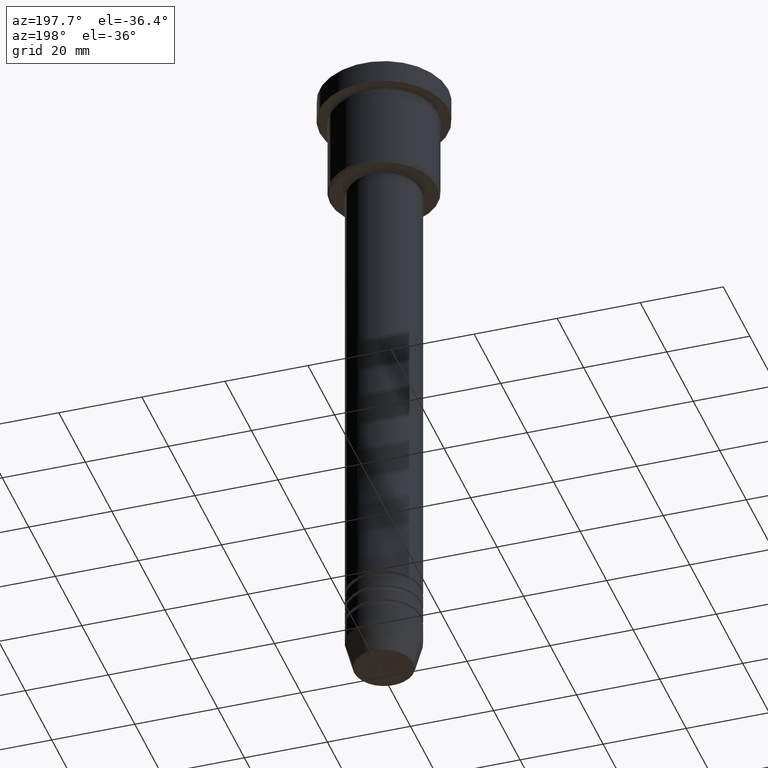
[diagram: clean part render]
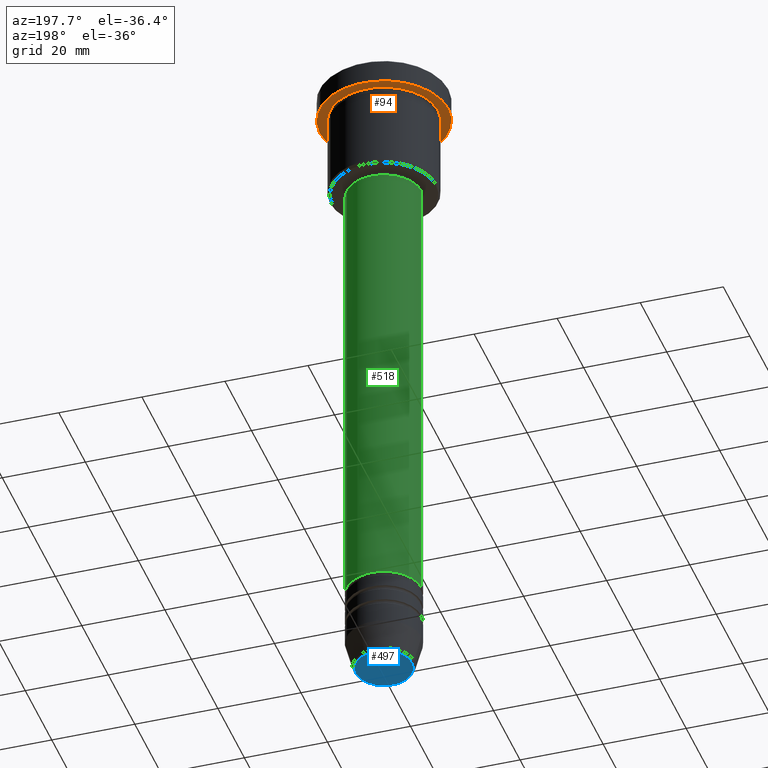
[diagram: same view with three faces highlighted in distinct colors, each labeled with its STEP entity id]
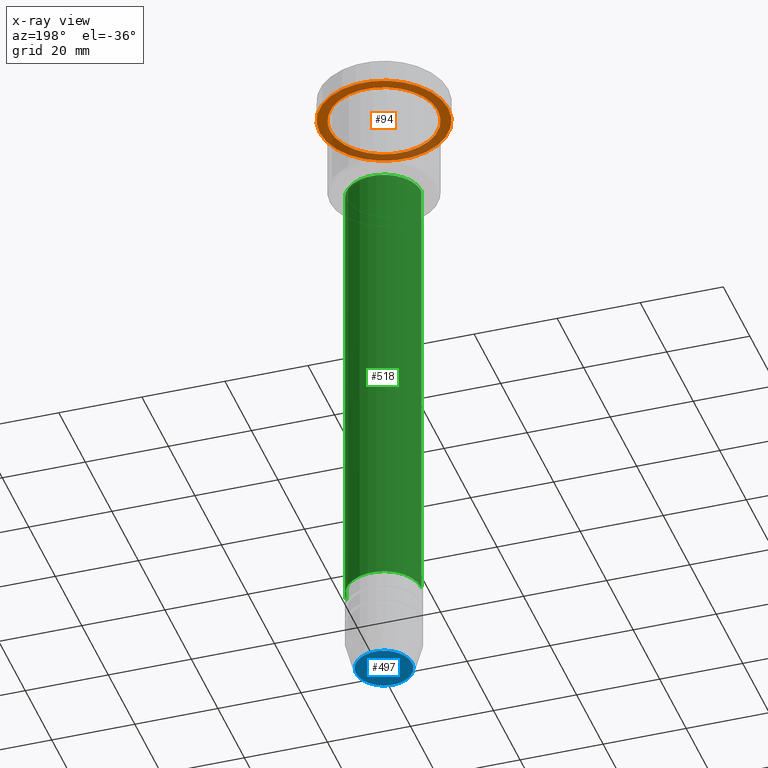
[diagram: x-ray of the same camera — body ghosted, the three highlighted faces saturated]
A machine part, auxiliary view with three faces highlighted in distinct colors.
The next image is the same camera in x-ray (body ghosted, the three faces saturated) — at least one of them is partly hidden behind the body in this view.
Their STEP definitions:

[orange] entity #94 — the highlighted planar face has unit normal (0, 0, -1).
#4 = DIRECTION ( 'NONE',  ( -1.000000000000000000, 0.000000000000000000, 0.000000000000000000 ) ) ;
#40 = VERTEX_POINT ( 'NONE', #455 ) ;
#47 = EDGE_LOOP ( 'NONE', ( #195, #1017 ) ) ;
#53 = DIRECTION ( 'NONE',  ( -1.000000000000000000, 0.000000000000000000, 0.000000000000000000 ) ) ;
#83 = AXIS2_PLACEMENT_3D ( 'NONE', #1007, #1095, #451 ) ;
#84 = CIRCLE ( 'NONE', #83, 15.50000000000000000 ) ;
#94 = ADVANCED_FACE ( 'NONE', ( #625, #975 ), #1150, .T. ) ;
#128 = EDGE_CURVE ( 'NONE', #40, #711, #571, .T. ) ;
#169 = VERTEX_POINT ( 'NONE', #1067 ) ;
#195 = ORIENTED_EDGE ( 'NONE', *, *, #532, .F. ) ;
#240 = EDGE_CURVE ( 'NONE', #711, #40, #837, .T. ) ;
#367 = CARTESIAN_POINT ( 'NONE',  ( 0.000000000000000000, 15.50000000000000000, -5.999999999999995559 ) ) ;
#368 = CARTESIAN_POINT ( 'NONE',  ( 0.000000000000000000, 0.000000000000000000, -5.999999999999995559 ) ) ;
#373 = DIRECTION ( 'NONE',  ( -0.000000000000000000, -0.000000000000000000, 1.000000000000000000 ) ) ;
#445 = DIRECTION ( 'NONE',  ( 0.000000000000000000, 0.000000000000000000, -1.000000000000000000 ) ) ;
#449 = ORIENTED_EDGE ( 'NONE', *, *, #128, .T. ) ;
#451 = DIRECTION ( 'NONE',  ( 1.000000000000000000, 0.000000000000000000, 0.000000000000000000 ) ) ;
#455 = CARTESIAN_POINT ( 'NONE',  ( -13.00000000000000000, 0.000000000000000000, -5.999999999999994671 ) ) ;
#484 = AXIS2_PLACEMENT_3D ( 'NONE', #1079, #891, #53 ) ;
#532 = EDGE_CURVE ( 'NONE', #169, #589, #786, .T. ) ;
#571 = CIRCLE ( 'NONE', #484, 13.00000000000000000 ) ;
#585 = AXIS2_PLACEMENT_3D ( 'NONE', #368, #1009, #1183 ) ;
#589 = VERTEX_POINT ( 'NONE', #1104 ) ;
#625 = FACE_BOUND ( 'NONE', #1129, .T. ) ;
#711 = VERTEX_POINT ( 'NONE', #763 ) ;
#714 = AXIS2_PLACEMENT_3D ( 'NONE', #367, #445, #1000 ) ;
#763 = CARTESIAN_POINT ( 'NONE',  ( 13.00000000000000000, 1.592040838891559095E-15, -5.999999999999994671 ) ) ;
#786 = CIRCLE ( 'NONE', #585, 15.50000000000000000 ) ;
#837 = CIRCLE ( 'NONE', #875, 13.00000000000000000 ) ;
#875 = AXIS2_PLACEMENT_3D ( 'NONE', #1027, #373, #4 ) ;
#891 = DIRECTION ( 'NONE',  ( -0.000000000000000000, -0.000000000000000000, 1.000000000000000000 ) ) ;
#912 = ORIENTED_EDGE ( 'NONE', *, *, #240, .T. ) ;
#975 = FACE_OUTER_BOUND ( 'NONE', #47, .T. ) ;
#1000 = DIRECTION ( 'NONE',  ( -1.000000000000000000, 0.000000000000000000, -0.000000000000000000 ) ) ;
#1007 = CARTESIAN_POINT ( 'NONE',  ( 0.000000000000000000, 0.000000000000000000, -5.999999999999995559 ) ) ;
#1009 = DIRECTION ( 'NONE',  ( -0.000000000000000000, -0.000000000000000000, 1.000000000000000000 ) ) ;
#1017 = ORIENTED_EDGE ( 'NONE', *, *, #1122, .F. ) ;
#1027 = CARTESIAN_POINT ( 'NONE',  ( 0.000000000000000000, 0.000000000000000000, -5.999999999999995559 ) ) ;
#1067 = CARTESIAN_POINT ( 'NONE',  ( 15.50000000000000000, 0.000000000000000000, -5.999999999999995559 ) ) ;
#1079 = CARTESIAN_POINT ( 'NONE',  ( 0.000000000000000000, 0.000000000000000000, -5.999999999999995559 ) ) ;
#1095 = DIRECTION ( 'NONE',  ( -0.000000000000000000, -0.000000000000000000, 1.000000000000000000 ) ) ;
#1104 = CARTESIAN_POINT ( 'NONE',  ( -15.50000000000000000, 1.898202538678397557E-15, -5.999999999999995559 ) ) ;
#1122 = EDGE_CURVE ( 'NONE', #589, #169, #84, .T. ) ;
#1129 = EDGE_LOOP ( 'NONE', ( #449, #912 ) ) ;
#1150 = PLANE ( 'NONE',  #714 ) ;
#1183 = DIRECTION ( 'NONE',  ( 1.000000000000000000, 0.000000000000000000, 0.000000000000000000 ) ) ;

[blue] entity #497 — the highlighted planar face has unit normal (0, -0, 1).
#38 = CIRCLE ( 'NONE', #873, 6.740692158992658278 ) ;
#58 = EDGE_LOOP ( 'NONE', ( #901, #705 ) ) ;
#223 = DIRECTION ( 'NONE',  ( 1.000000000000000000, 0.000000000000000000, 0.000000000000000000 ) ) ;
#225 = CARTESIAN_POINT ( 'NONE',  ( -6.740692158992658278, 8.550696569392685681E-16, -162.0000000000000284 ) ) ;
#237 = CARTESIAN_POINT ( 'NONE',  ( 0.000000000000000000, 0.000000000000000000, -162.0000000000000284 ) ) ;
#421 = PLANE ( 'NONE',  #708 ) ;
#497 = ADVANCED_FACE ( 'NONE', ( #688 ), #421, .F. ) ;
#543 = AXIS2_PLACEMENT_3D ( 'NONE', #556, #870, #1051 ) ;
#556 = CARTESIAN_POINT ( 'NONE',  ( 0.000000000000000000, 0.000000000000000000, -162.0000000000000284 ) ) ;
#673 = DIRECTION ( 'NONE',  ( 0.000000000000000000, 0.000000000000000000, -1.000000000000000000 ) ) ;
#684 = EDGE_CURVE ( 'NONE', #997, #831, #38, .T. ) ;
#688 = FACE_OUTER_BOUND ( 'NONE', #58, .T. ) ;
#705 = ORIENTED_EDGE ( 'NONE', *, *, #684, .T. ) ;
#708 = AXIS2_PLACEMENT_3D ( 'NONE', #237, #1068, #791 ) ;
#791 = DIRECTION ( 'NONE',  ( 1.000000000000000000, 0.000000000000000000, 0.000000000000000000 ) ) ;
#831 = VERTEX_POINT ( 'NONE', #1062 ) ;
#870 = DIRECTION ( 'NONE',  ( 0.000000000000000000, 0.000000000000000000, -1.000000000000000000 ) ) ;
#873 = AXIS2_PLACEMENT_3D ( 'NONE', #959, #673, #223 ) ;
#901 = ORIENTED_EDGE ( 'NONE', *, *, #1029, .T. ) ;
#959 = CARTESIAN_POINT ( 'NONE',  ( 0.000000000000000000, 0.000000000000000000, -162.0000000000000284 ) ) ;
#997 = VERTEX_POINT ( 'NONE', #225 ) ;
#1029 = EDGE_CURVE ( 'NONE', #831, #997, #1137, .T. ) ;
#1051 = DIRECTION ( 'NONE',  ( 1.000000000000000000, 0.000000000000000000, 0.000000000000000000 ) ) ;
#1062 = CARTESIAN_POINT ( 'NONE',  ( 6.740692158992658278, 0.000000000000000000, -162.0000000000000284 ) ) ;
#1068 = DIRECTION ( 'NONE',  ( 0.000000000000000000, -0.000000000000000000, 1.000000000000000000 ) ) ;
#1137 = CIRCLE ( 'NONE', #543, 6.740692158992658278 ) ;

[green] entity #518 — the highlighted cylindrical surface (partial cylindrical patch) has radius 9 mm, axis along (-0, -0, 1).
#2 = CIRCLE ( 'NONE', #116, 9.000000000000001776 ) ;
#29 = CIRCLE ( 'NONE', #111, 8.999999999999998224 ) ;
#70 = LINE ( 'NONE', #440, #478 ) ;
#81 = VERTEX_POINT ( 'NONE', #355 ) ;
#111 = AXIS2_PLACEMENT_3D ( 'NONE', #1136, #242, #707 ) ;
#116 = AXIS2_PLACEMENT_3D ( 'NONE', #799, #530, #703 ) ;
#167 = EDGE_CURVE ( 'NONE', #961, #681, #2, .T. ) ;
#193 = DIRECTION ( 'NONE',  ( -0.000000000000000000, -0.000000000000000000, 1.000000000000000000 ) ) ;
#242 = DIRECTION ( 'NONE',  ( -0.000000000000000000, -0.000000000000000000, 1.000000000000000000 ) ) ;
#252 = AXIS2_PLACEMENT_3D ( 'NONE', #820, #1177, #286 ) ;
#256 = EDGE_CURVE ( 'NONE', #681, #615, #1019, .T. ) ;
#286 = DIRECTION ( 'NONE',  ( 1.000000000000000000, 0.000000000000000000, 0.000000000000000000 ) ) ;
#297 = CARTESIAN_POINT ( 'NONE',  ( -9.000000000000000000, 1.102182119232617714E-15, 0.000000000000000000 ) ) ;
#324 = VECTOR ( 'NONE', #193, 1000.000000000000000 ) ;
#347 = ORIENTED_EDGE ( 'NONE', *, *, #256, .T. ) ;
#355 = CARTESIAN_POINT ( 'NONE',  ( 8.999999999999998224, 0.000000000000000000, -28.00000000000001776 ) ) ;
#385 = CARTESIAN_POINT ( 'NONE',  ( -8.999999999999998224, 1.102182119232617714E-15, -28.00000000000001776 ) ) ;
#440 = CARTESIAN_POINT ( 'NONE',  ( 9.000000000000000000, 0.000000000000000000, 0.000000000000000000 ) ) ;
#475 = EDGE_CURVE ( 'NONE', #961, #81, #70, .T. ) ;
#478 = VECTOR ( 'NONE', #812, 1000.000000000000000 ) ;
#512 = FACE_OUTER_BOUND ( 'NONE', #785, .T. ) ;
#518 = ADVANCED_FACE ( 'NONE', ( #512 ), #892, .T. ) ;
#530 = DIRECTION ( 'NONE',  ( -0.000000000000000000, -0.000000000000000000, 1.000000000000000000 ) ) ;
#569 = CARTESIAN_POINT ( 'NONE',  ( -9.000000000000001776, 1.102182119232617911E-15, -140.9999999999999147 ) ) ;
#615 = VERTEX_POINT ( 'NONE', #385 ) ;
#676 = ORIENTED_EDGE ( 'NONE', *, *, #475, .F. ) ;
#681 = VERTEX_POINT ( 'NONE', #569 ) ;
#703 = DIRECTION ( 'NONE',  ( 1.000000000000000000, 0.000000000000000000, 0.000000000000000000 ) ) ;
#707 = DIRECTION ( 'NONE',  ( 1.000000000000000000, 0.000000000000000000, 0.000000000000000000 ) ) ;
#772 = CARTESIAN_POINT ( 'NONE',  ( 9.000000000000001776, 0.000000000000000000, -140.9999999999999147 ) ) ;
#785 = EDGE_LOOP ( 'NONE', ( #1036, #347, #1166, #676 ) ) ;
#799 = CARTESIAN_POINT ( 'NONE',  ( 0.000000000000000000, 0.000000000000000000, -140.9999999999999147 ) ) ;
#812 = DIRECTION ( 'NONE',  ( -0.000000000000000000, -0.000000000000000000, 1.000000000000000000 ) ) ;
#813 = EDGE_CURVE ( 'NONE', #81, #615, #29, .T. ) ;
#820 = CARTESIAN_POINT ( 'NONE',  ( 0.000000000000000000, 0.000000000000000000, 0.000000000000000000 ) ) ;
#892 = CYLINDRICAL_SURFACE ( 'NONE', #252, 9.000000000000000000 ) ;
#961 = VERTEX_POINT ( 'NONE', #772 ) ;
#1019 = LINE ( 'NONE', #297, #324 ) ;
#1036 = ORIENTED_EDGE ( 'NONE', *, *, #167, .T. ) ;
#1136 = CARTESIAN_POINT ( 'NONE',  ( 0.000000000000000000, 0.000000000000000000, -28.00000000000001776 ) ) ;
#1166 = ORIENTED_EDGE ( 'NONE', *, *, #813, .F. ) ;
#1177 = DIRECTION ( 'NONE',  ( -0.000000000000000000, -0.000000000000000000, 1.000000000000000000 ) ) ;